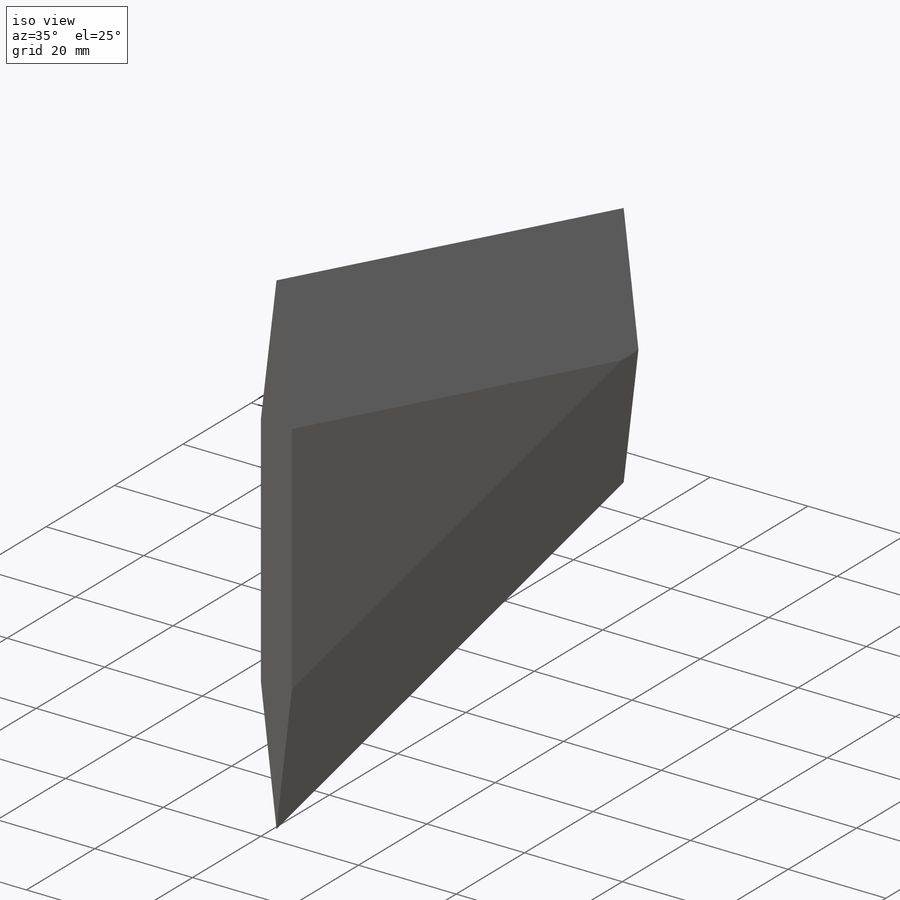
[diagram: iso view]
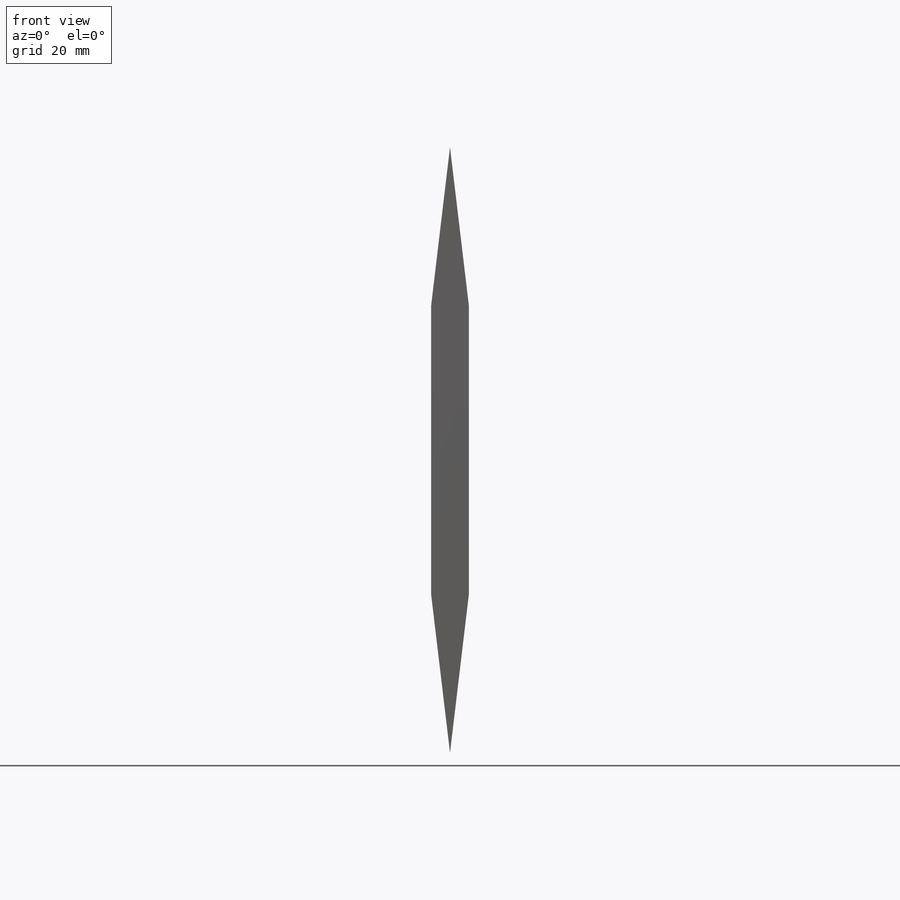
[diagram: front view]
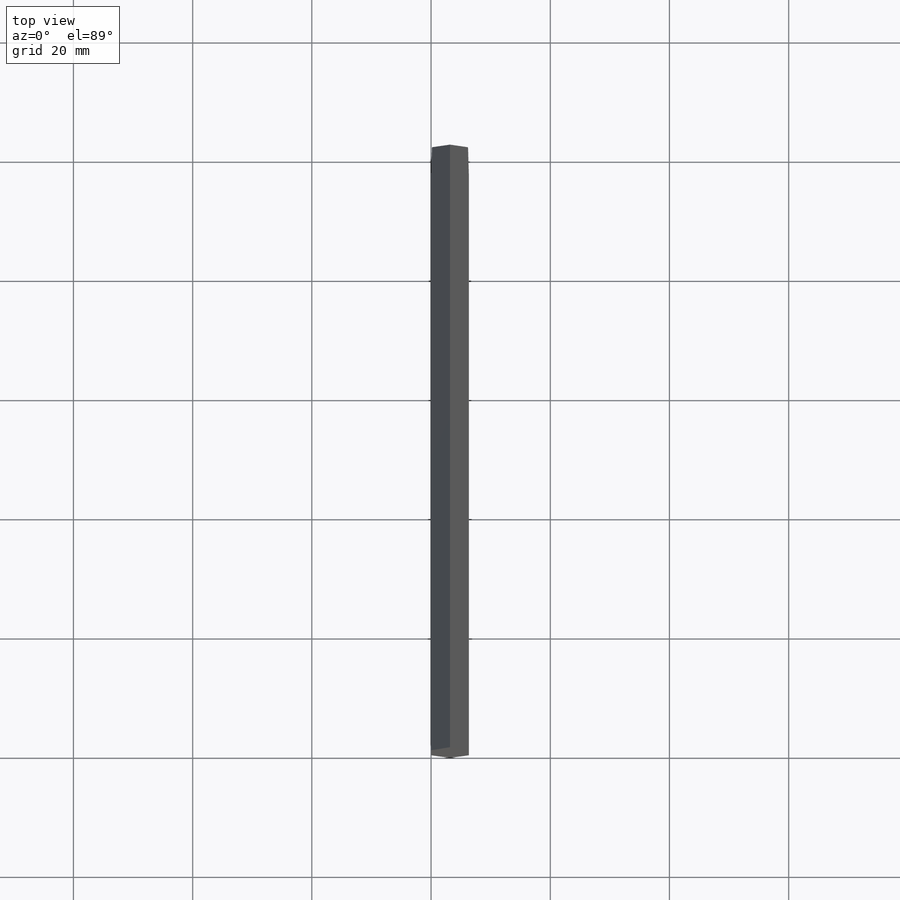
[diagram: top view]
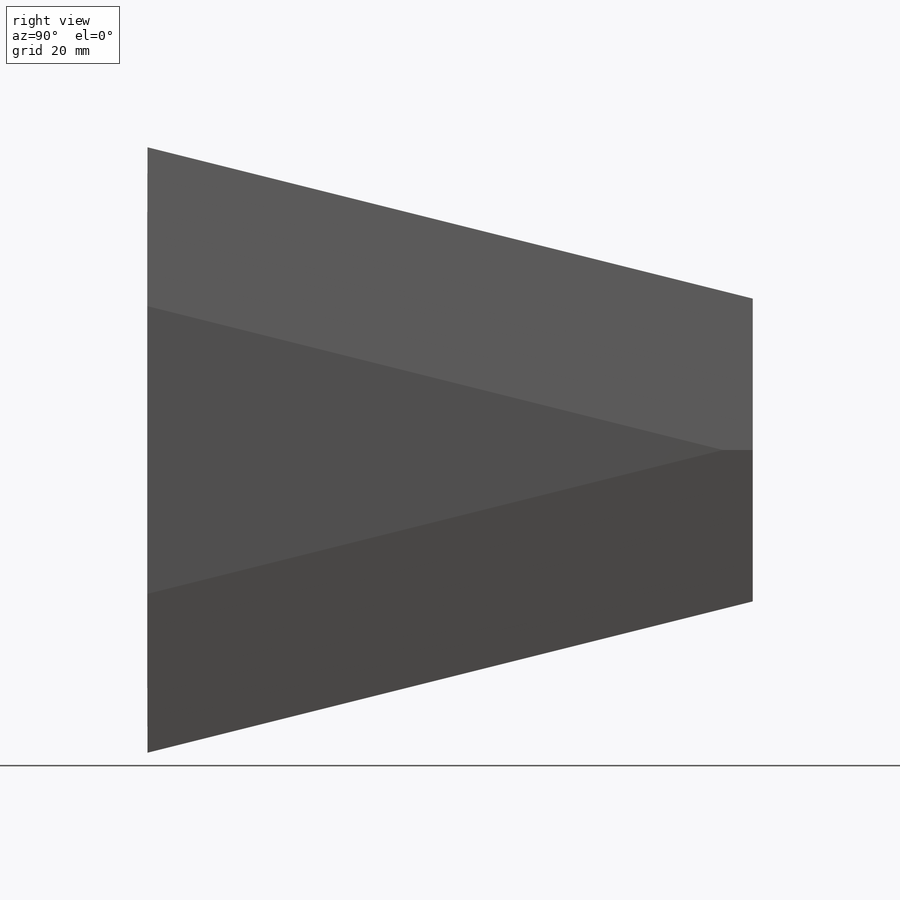
[diagram: right view]
SOLIDWORKS PART (.sldprt)
format: sldprt  version: not decoded by parser v0  size: 165,376 bytes
history: native  units: mm
features: chamfer x4, sketch x2, material x1, extrude x1, cut_extrude x1 (+12 scaffold rows collapsed)
feature tree (21):
  scaffold x12  (default folders/planes/origin — collapsed)
  material  "Material <not specified>"
  sketch  "Sketch1"  dims[D1=25.4mm D2=50.8mm D3=25.4mm D4=101.6mm]
  extrude  "Boss-Extrude1"  Depth=6.35mm
  chamfer  "Chamfer1"  Distance=3.175mm Angle=83deg
  chamfer  "Chamfer2"  Distance=3.175mm Angle=83deg
  chamfer  "Chamfer3"  Distance=3.175mm Angle=83deg
  chamfer  "Chamfer4"  Distance=3.175mm Angle=83deg
  sketch  "Sketch2"  dims[D1=34.0868mm D2=34.036mm D3=12.7mm]
  cut_extrude  "Cut-Extrude1"  [1 undecoded]
decode coverage: 7 of 8 modeling features carry decoded parameters
note: 1 parameter value undecoded
note: suppression state not decoded; provenance and decode notes live in map.json
